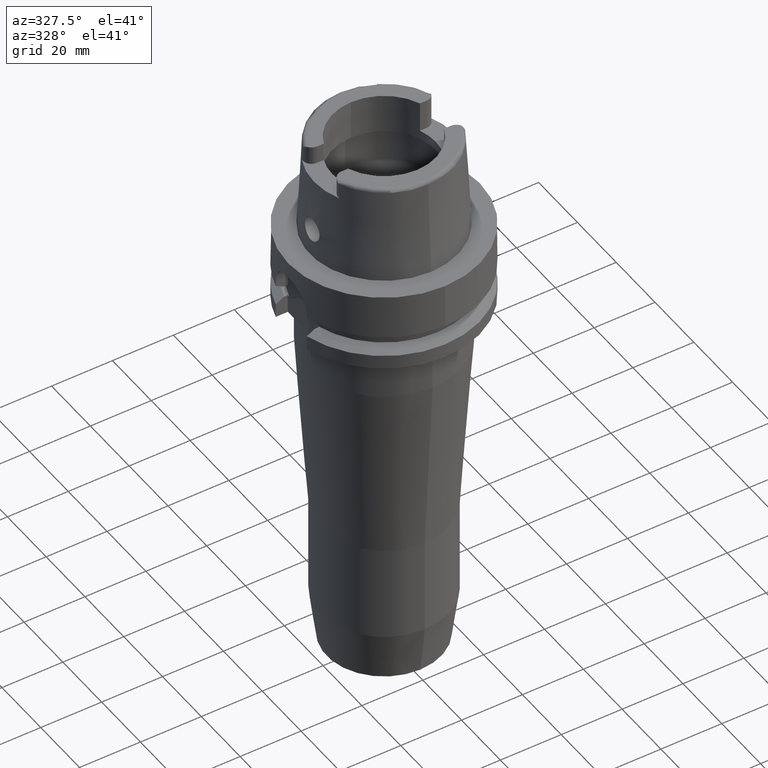
[diagram: clean part render]
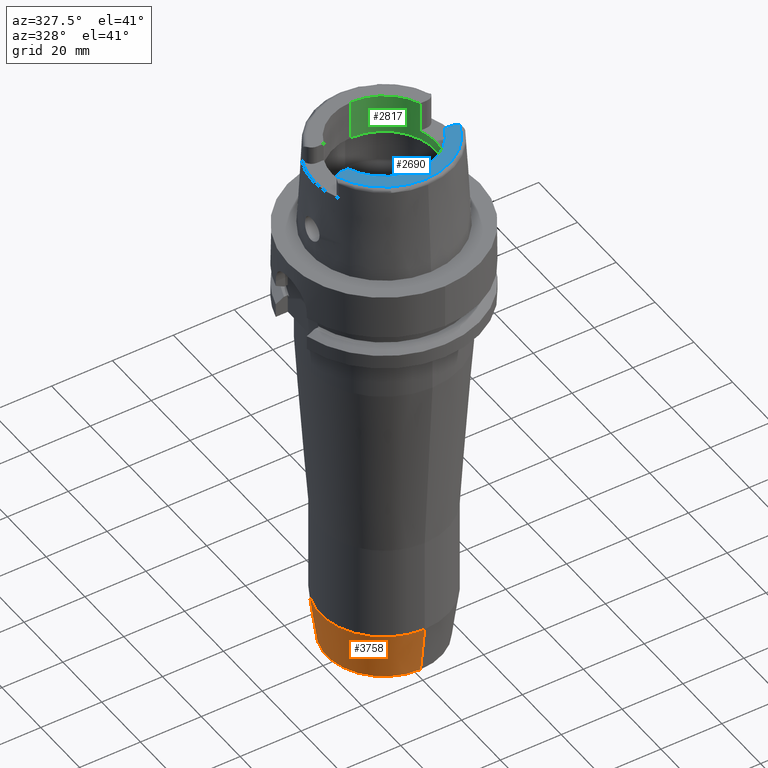
[diagram: same view with three faces highlighted in distinct colors, each labeled with its STEP entity id]
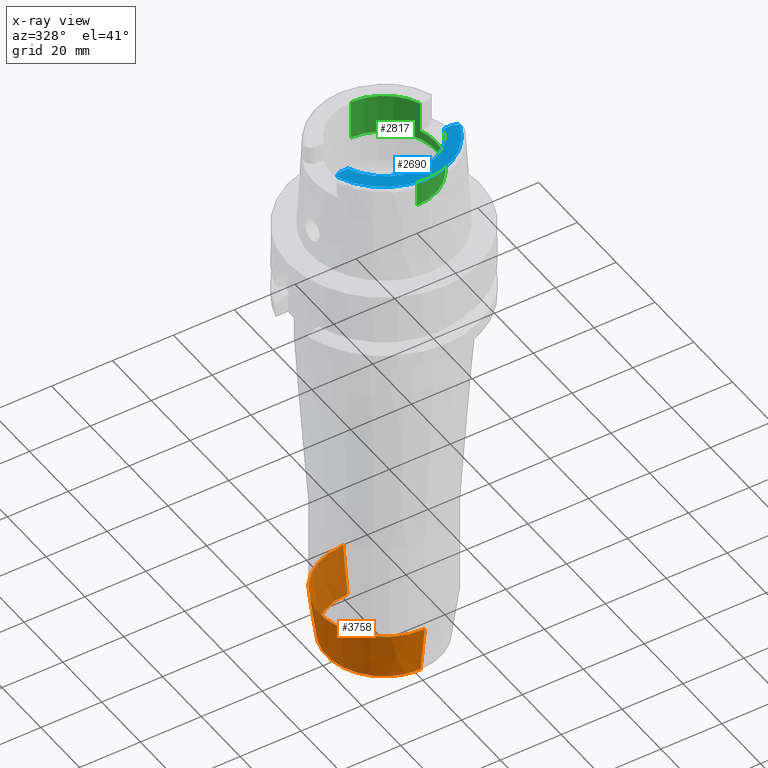
[diagram: x-ray of the same camera — body ghosted, the three highlighted faces saturated]
A machine part, auxiliary view with three faces highlighted in distinct colors.
The next image is the same camera in x-ray (body ghosted, the three faces saturated) — at least one of them is partly hidden behind the body in this view.
Their STEP definitions:

[orange] entity #3758 — the highlighted conical surface has half-angle 7.5 deg.
#1683=DIRECTION('',(0.E0,-1.305261922200E-1,-9.914448613738E-1));
#1684=VECTOR('',#1683,1.649477368014E1);
#1685=CARTESIAN_POINT('',(0.E0,2.1E1,-1.336463413953E2));
#1686=LINE('',#1685,#1684);
#1698=CARTESIAN_POINT('',(0.E0,0.E0,-1.336463413953E2));
#1699=DIRECTION('',(0.E0,0.E0,1.E0));
#1700=DIRECTION('',(0.E0,1.E0,0.E0));
#1701=AXIS2_PLACEMENT_3D('',#1698,#1699,#1700);
#1706=DIRECTION('',(0.E0,1.305261922200E-1,-9.914448613738E-1));
#1707=VECTOR('',#1706,1.649477368014E1);
#1708=CARTESIAN_POINT('',(0.E0,-2.1E1,-1.336463413953E2));
#1709=LINE('',#1708,#1707);
#1721=CARTESIAN_POINT('',(0.E0,0.E0,-1.5E2));
#1722=DIRECTION('',(0.E0,0.E0,1.E0));
#1723=DIRECTION('',(0.E0,1.E0,0.E0));
#1724=AXIS2_PLACEMENT_3D('',#1721,#1722,#1723);
#2430=CARTESIAN_POINT('',(0.E0,-1.884700000001E1,-1.5E2));
#2431=CARTESIAN_POINT('',(0.E0,1.884700000001E1,-1.5E2));
#2432=VERTEX_POINT('',#2430);
#2433=VERTEX_POINT('',#2431);
#2434=CARTESIAN_POINT('',(0.E0,2.1E1,-1.336463413953E2));
#2435=VERTEX_POINT('',#2434);
#2436=CARTESIAN_POINT('',(0.E0,-2.1E1,-1.336463413953E2));
#2437=VERTEX_POINT('',#2436);
#3746=CARTESIAN_POINT('',(0.E0,0.E0,-1.418231706977E2));
#3747=DIRECTION('',(0.E0,0.E0,1.E0));
#3748=DIRECTION('',(0.E0,1.E0,0.E0));
#3749=AXIS2_PLACEMENT_3D('',#3746,#3747,#3748);
#3750=CONICAL_SURFACE('',#3749,1.992350000001E1,7.5E0);
#3751=ORIENTED_EDGE('',*,*,#3736,.F.);
#3752=ORIENTED_EDGE('',*,*,#3713,.T.);
#3753=ORIENTED_EDGE('',*,*,#3740,.T.);
#3755=ORIENTED_EDGE('',*,*,#3754,.F.);
#3756=EDGE_LOOP('',(#3751,#3752,#3753,#3755));
#3757=FACE_OUTER_BOUND('',#3756,.F.);
#1702=CIRCLE('',#1701,2.100000000001E1);
#1725=CIRCLE('',#1724,1.884700000001E1);
#3713=EDGE_CURVE('',#2435,#2437,#1702,.T.);
#3736=EDGE_CURVE('',#2435,#2433,#1686,.T.);
#3740=EDGE_CURVE('',#2437,#2432,#1709,.T.);
#3754=EDGE_CURVE('',#2433,#2432,#1725,.T.);
#3758=ADVANCED_FACE('',(#3757),#3750,.T.);

[blue] entity #2690 — the highlighted planar face has unit normal (0, 0, 1).
#99=DIRECTION('',(-1.E0,8.644330667353E-14,0.E0));
#100=VECTOR('',#99,2.188509563969E0);
#101=CARTESIAN_POINT('',(-1.580149043603E1,-6.27E0,3.2E1));
#102=LINE('',#101,#100);
#106=CARTESIAN_POINT('',(-1.799E1,-9.15E0,3.2E1));
#107=DIRECTION('',(0.E0,0.E0,-1.E0));
#108=DIRECTION('',(-7.912216523764E-1,6.115294733787E-1,0.E0));
#109=AXIS2_PLACEMENT_3D('',#106,#107,#108);
#114=CARTESIAN_POINT('',(0.E0,0.E0,3.2E1));
#115=DIRECTION('',(0.E0,0.E0,1.E0));
#116=DIRECTION('',(-9.294994374136E-1,-3.688235294118E-1,0.E0));
#117=AXIS2_PLACEMENT_3D('',#114,#115,#116);
#122=CARTESIAN_POINT('',(0.E0,0.E0,3.2E1));
#123=DIRECTION('',(0.E0,0.E0,1.E0));
#124=DIRECTION('',(0.E0,-1.E0,0.E0));
#125=AXIS2_PLACEMENT_3D('',#122,#123,#124);
#130=CARTESIAN_POINT('',(1.799E1,-9.15E0,3.2E1));
#131=DIRECTION('',(0.E0,0.E0,-1.E0));
#132=DIRECTION('',(0.E0,1.E0,0.E0));
#133=AXIS2_PLACEMENT_3D('',#130,#131,#132);
#138=CARTESIAN_POINT('',(0.E0,0.E0,3.2E1));
#139=DIRECTION('',(0.E0,0.E0,-1.E0));
#140=DIRECTION('',(9.395199128801E-1,-3.424942821446E-1,0.E0));
#141=AXIS2_PLACEMENT_3D('',#138,#139,#140);
#309=DIRECTION('',(-1.E0,-8.806665515566E-14,0.E0));
#310=VECTOR('',#309,2.188509563969E0);
#311=CARTESIAN_POINT('',(1.799E1,-6.27E0,3.2E1));
#312=LINE('',#311,#310);
#2287=CARTESIAN_POINT('',(0.E0,-1.7E1,3.2E1));
#2288=VERTEX_POINT('',#2287);
#2289=CARTESIAN_POINT('',(-1.580149043603E1,-6.27E0,3.2E1));
#2290=VERTEX_POINT('',#2289);
#2303=CARTESIAN_POINT('',(-1.799E1,-6.27E0,3.2E1));
#2304=VERTEX_POINT('',#2303);
#2315=CARTESIAN_POINT('',(-2.026871835884E1,-7.388795116669E0,3.2E1));
#2316=VERTEX_POINT('',#2315);
#2317=CARTESIAN_POINT('',(1.580149043603E1,-6.27E0,3.2E1));
#2318=VERTEX_POINT('',#2317);
#2319=CARTESIAN_POINT('',(1.799E1,-6.27E0,3.2E1));
#2320=VERTEX_POINT('',#2319);
#2321=CARTESIAN_POINT('',(2.026871835884E1,-7.388795116670E0,3.2E1));
#2322=VERTEX_POINT('',#2321);
#2671=CARTESIAN_POINT('',(0.E0,0.E0,3.2E1));
#2672=DIRECTION('',(0.E0,0.E0,1.E0));
#2673=DIRECTION('',(0.E0,1.E0,0.E0));
#2674=AXIS2_PLACEMENT_3D('',#2671,#2672,#2673);
#2675=PLANE('',#2674);
#2677=ORIENTED_EDGE('',*,*,#2676,.T.);
#2678=ORIENTED_EDGE('',*,*,#2663,.F.);
#2679=ORIENTED_EDGE('',*,*,#2627,.T.);
#2681=ORIENTED_EDGE('',*,*,#2680,.T.);
#2683=ORIENTED_EDGE('',*,*,#2682,.F.);
#2685=ORIENTED_EDGE('',*,*,#2684,.T.);
#2687=ORIENTED_EDGE('',*,*,#2686,.T.);
#2688=EDGE_LOOP('',(#2677,#2678,#2679,#2681,#2683,#2685,#2687));
#2689=FACE_OUTER_BOUND('',#2688,.F.);
#110=CIRCLE('',#109,2.88E0);
#118=CIRCLE('',#117,1.7E1);
#126=CIRCLE('',#125,1.7E1);
#134=CIRCLE('',#133,2.88E0);
#142=CIRCLE('',#141,2.157348458609E1);
#2627=EDGE_CURVE('',#2290,#2288,#118,.T.);
#2663=EDGE_CURVE('',#2290,#2304,#102,.T.);
#2676=EDGE_CURVE('',#2316,#2304,#110,.T.);
#2680=EDGE_CURVE('',#2288,#2318,#126,.T.);
#2682=EDGE_CURVE('',#2320,#2318,#312,.T.);
#2684=EDGE_CURVE('',#2320,#2322,#134,.T.);
#2686=EDGE_CURVE('',#2322,#2316,#142,.T.);
#2690=ADVANCED_FACE('',(#2689),#2675,.T.);

[green] entity #2817 — the highlighted cylindrical surface (partial cylindrical patch) has radius 17 mm, axis along (0, 0, 1).
#25=DIRECTION('',(0.E0,7.376457760500E-14,1.E0));
#26=VECTOR('',#25,1.300397459622E1);
#27=CARTESIAN_POINT('',(0.E0,-1.7E1,1.899602540378E1));
#28=LINE('',#27,#26);
#122=CARTESIAN_POINT('',(0.E0,0.E0,3.2E1));
#123=DIRECTION('',(0.E0,0.E0,1.E0));
#124=DIRECTION('',(0.E0,-1.E0,0.E0));
#125=AXIS2_PLACEMENT_3D('',#122,#123,#124);
#316=DIRECTION('',(0.E0,0.E0,1.E0));
#317=VECTOR('',#316,1.E1);
#318=CARTESIAN_POINT('',(1.580149043603E1,-6.27E0,2.2E1));
#319=LINE('',#318,#317);
#323=DIRECTION('',(0.E0,-7.376457760500E-14,1.E0));
#324=VECTOR('',#323,1.300397459622E1);
#325=CARTESIAN_POINT('',(0.E0,1.7E1,1.899602540378E1));
#326=LINE('',#325,#324);
#330=DIRECTION('',(0.E0,0.E0,-1.E0));
#331=VECTOR('',#330,1.E1);
#332=CARTESIAN_POINT('',(1.580149043603E1,6.27E0,3.2E1));
#333=LINE('',#332,#331);
#337=CARTESIAN_POINT('',(0.E0,0.E0,2.2E1));
#338=DIRECTION('',(0.E0,0.E0,1.E0));
#339=DIRECTION('',(9.294994374136E-1,-3.688235294118E-1,0.E0));
#340=AXIS2_PLACEMENT_3D('',#337,#338,#339);
#428=CARTESIAN_POINT('',(0.E0,0.E0,3.2E1));
#429=DIRECTION('',(0.E0,0.E0,1.E0));
#430=DIRECTION('',(9.294994374136E-1,3.688235294118E-1,0.E0));
#431=AXIS2_PLACEMENT_3D('',#428,#429,#430);
#2229=CARTESIAN_POINT('',(0.E0,0.E0,1.899602540378E1));
#2230=DIRECTION('',(0.E0,0.E0,-1.E0));
#2231=DIRECTION('',(0.E0,1.E0,0.E0));
#2232=AXIS2_PLACEMENT_3D('',#2229,#2230,#2231);
#2281=CARTESIAN_POINT('',(0.E0,1.7E1,3.2E1));
#2282=VERTEX_POINT('',#2281);
#2283=CARTESIAN_POINT('',(0.E0,1.7E1,1.899602540378E1));
#2284=VERTEX_POINT('',#2283);
#2285=CARTESIAN_POINT('',(0.E0,-1.7E1,1.899602540378E1));
#2286=VERTEX_POINT('',#2285);
#2287=CARTESIAN_POINT('',(0.E0,-1.7E1,3.2E1));
#2288=VERTEX_POINT('',#2287);
#2313=CARTESIAN_POINT('',(1.580149043603E1,6.27E0,3.2E1));
#2314=VERTEX_POINT('',#2313);
#2317=CARTESIAN_POINT('',(1.580149043603E1,-6.27E0,3.2E1));
#2318=VERTEX_POINT('',#2317);
#2348=CARTESIAN_POINT('',(1.580149043603E1,-6.27E0,2.2E1));
#2349=CARTESIAN_POINT('',(1.580149043603E1,6.27E0,2.2E1));
#2350=VERTEX_POINT('',#2348);
#2351=VERTEX_POINT('',#2349);
#2798=CARTESIAN_POINT('',(0.E0,0.E0,-1.591E2));
#2799=DIRECTION('',(0.E0,0.E0,1.E0));
#2800=DIRECTION('',(0.E0,1.E0,0.E0));
#2801=AXIS2_PLACEMENT_3D('',#2798,#2799,#2800);
#2802=CYLINDRICAL_SURFACE('',#2801,1.7E1);
#2804=ORIENTED_EDGE('',*,*,#2803,.F.);
#2805=ORIENTED_EDGE('',*,*,#2790,.T.);
#2806=ORIENTED_EDGE('',*,*,#2680,.F.);
#2807=ORIENTED_EDGE('',*,*,#2625,.F.);
#2809=ORIENTED_EDGE('',*,*,#2808,.F.);
#2810=ORIENTED_EDGE('',*,*,#2621,.T.);
#2812=ORIENTED_EDGE('',*,*,#2811,.F.);
#2814=ORIENTED_EDGE('',*,*,#2813,.T.);
#2815=EDGE_LOOP('',(#2804,#2805,#2806,#2807,#2809,#2810,#2812,#2814));
#2816=FACE_OUTER_BOUND('',#2815,.F.);
#126=CIRCLE('',#125,1.7E1);
#341=CIRCLE('',#340,1.7E1);
#432=CIRCLE('',#431,1.7E1);
#2233=CIRCLE('',#2232,1.7E1);
#2621=EDGE_CURVE('',#2284,#2282,#326,.T.);
#2625=EDGE_CURVE('',#2286,#2288,#28,.T.);
#2680=EDGE_CURVE('',#2288,#2318,#126,.T.);
#2790=EDGE_CURVE('',#2350,#2318,#319,.T.);
#2803=EDGE_CURVE('',#2350,#2351,#341,.T.);
#2808=EDGE_CURVE('',#2284,#2286,#2233,.T.);
#2811=EDGE_CURVE('',#2314,#2282,#432,.T.);
#2813=EDGE_CURVE('',#2314,#2351,#333,.T.);
#2817=ADVANCED_FACE('',(#2816),#2802,.F.);